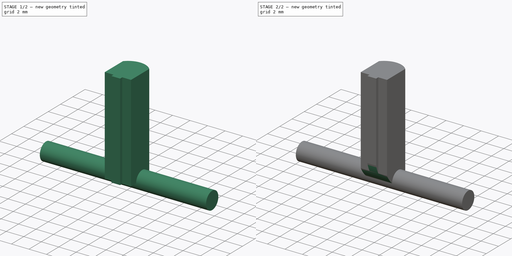
[diagram: build sequence overview — one tinted view per stage of 2, left to right]
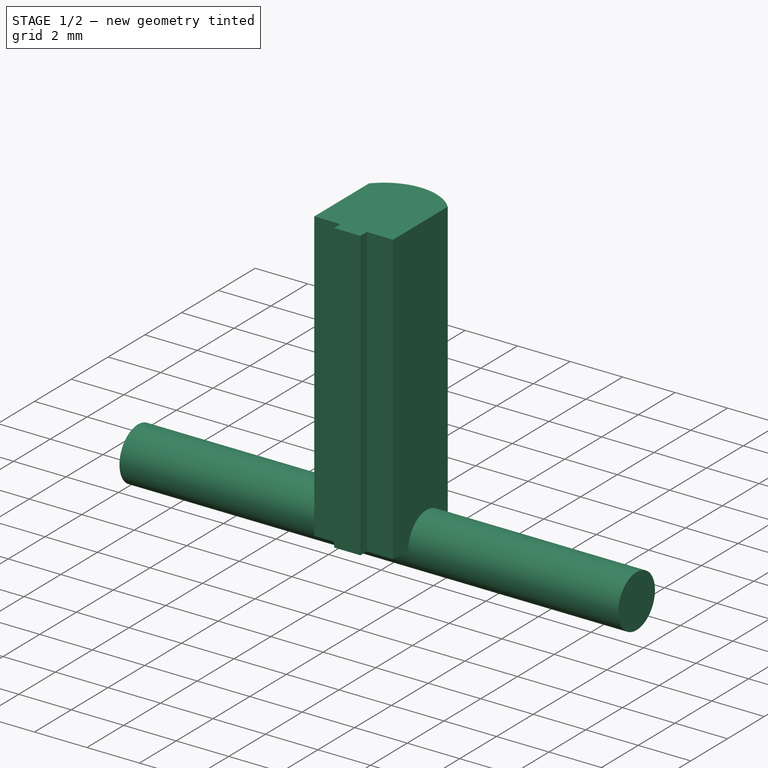
[diagram: stage 1 of 2 — iso view after this stage's code; geometry added in this stage tinted green]
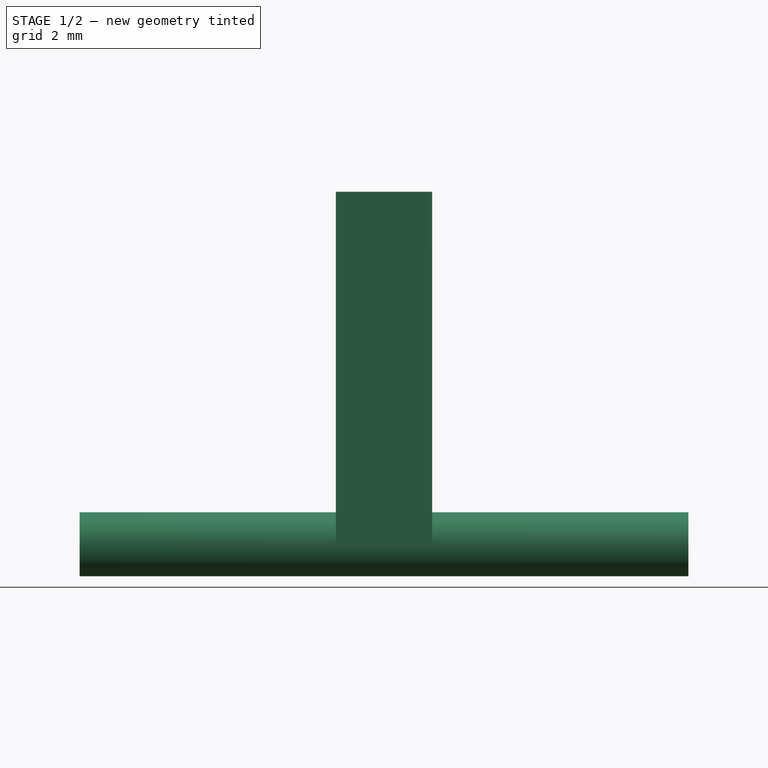
[diagram: stage 1 of 2 — front view after this stage's code; geometry added in this stage tinted green]
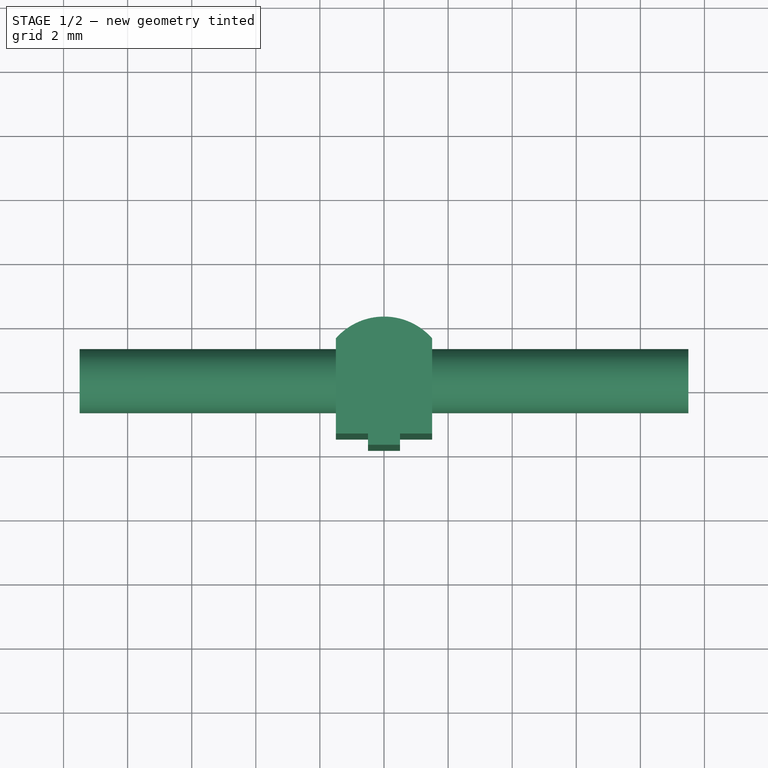
[diagram: stage 1 of 2 — top view after this stage's code; geometry added in this stage tinted green]
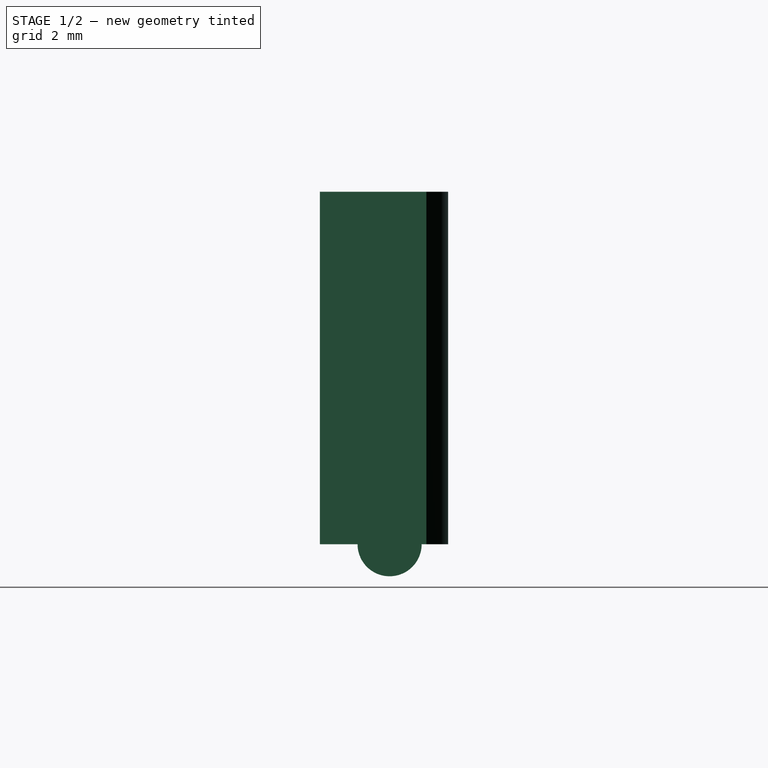
[diagram: stage 1 of 2 — right view after this stage's code; geometry added in this stage tinted green]
FCSTD DOCUMENT  (FreeCAD 0.20R)
Label: Eje Joystick
License: All rights reserved
LicenseURL: http://en.wikipedia.org/wiki/All_rights_reserved
objects: Sketcher::SketchObject×3, PartDesign::Pad×2, PartDesign::Pocket×1, PartDesign::Body×1
note: 10 computed .brp shape members not serialized (recipe doc carries the construction recipe); baked Part::Feature solids carry a one-line shape summary decoded from their .brp

FEATURE [Sketcher::SketchObject] Sketch
  FullyConstrained = true
  MapMode = 5
  Support = -> [XY_Plane]
  sketch-geometry (14):
    g0: LineSegment StartX=-1.5 StartY=1.48644 StartZ=0 EndX=-1.5 EndY=-1.48644 EndZ=0
    g1: LineSegment StartX=-1.5 StartY=-1.48644 StartZ=0 EndX=1.5 EndY=-1.48644 EndZ=0
    g2: LineSegment StartX=1.5 StartY=-1.48644 StartZ=0 EndX=1.5 EndY=1.48644 EndZ=0
    g3: ArcOfCircle CenterX=1e-16 CenterY=0.163562 CenterZ=0 NormalX=0 NormalY=0 NormalZ=1 AngleXU=0 Radius=2 StartAngle=0.722734 EndAngle=2.41886
    g4: LineSegment StartX=-1.5 StartY=1.48644 StartZ=0 EndX=1.5 EndY=-1.48644 EndZ=0
    g5: LineSegment StartX=1.5 StartY=1.48644 StartZ=0 EndX=-1.5 EndY=-1.48644 EndZ=0
    g6: LineSegment StartX=-1.5 StartY=-1.48644 StartZ=0 EndX=-0.5 EndY=-1.48644 EndZ=0
    g7: LineSegment StartX=-0.5 StartY=-1.48644 StartZ=0 EndX=-0.5 EndY=-1.83644 EndZ=0
    g8: LineSegment StartX=-0.5 StartY=-1.83644 StartZ=0 EndX=0.5 EndY=-1.83644 EndZ=0
    g9: LineSegment StartX=0.5 StartY=-1.83644 StartZ=0 EndX=0.5 EndY=-1.48644 EndZ=0
    g10: LineSegment StartX=0.5 StartY=-1.48644 StartZ=0 EndX=1.5 EndY=-1.48644 EndZ=0
    g11: GeomPoint X=1e-16 Y=2.16356 Z=0
    g12: LineSegment StartX=0 StartY=0 StartZ=0 EndX=0 EndY=-1.83644 EndZ=0
    g13: LineSegment StartX=0 StartY=0 StartZ=0 EndX=1e-16 EndY=2.16356 EndZ=0
  constraints (38):
    c: Coincident(g0,g1)
    c: Horizontal(g1)
    c: Coincident(g4,g0)
    c: Coincident(g4,g1)
    c: Coincident(g5,g2)
    c: Coincident(g5,g0)
    c: PointOnObject(g-1,g4)
    c: PointOnObject(g-1,g5)
    c: Coincident(g0,g6)
    c: Horizontal(g6)
    c: Coincident(g6,g7)
    c: Vertical(g7)
    c: Coincident(g7,g8)
    c: Horizontal(g8)
    c: Coincident(g8,g9)
    c: Vertical(g9)
    c: Coincident(g9,g10)
    c: Coincident(g10,g2)
    c: Horizontal(g10)
    c: Equal(g6,g10)
    c: DistanceX(g7,g8) = 1
    c: DistanceY(g8,g9) = 0.35
    c: Coincident(g3,g2)
    c: Vertical(g2)
    c: Coincident(g2,g1)
    c: DistanceX(g0,g2) = 3
    c: PointOnObject(g11,g3)
    c: Vertical(g3,g11)
    c: DistanceY(g8,g11) = 4
    c: Vertical(g0)
    c: Coincident(g3,g0)
    c: Horizontal(g2,g0)
    c: Coincident(g12,g-1)
    c: PointOnObject(g12,g8)
    c: Vertical(g12)
    c: Coincident(g13,g12)
    c: Coincident(g13,g11)
    c: Radius(g3) = 2
FEATURE [PartDesign::Pad] Pad
  Direction = (0,0,1)
  Length = 11
  Length2 = 10
  Profile = -> Sketch
  ReferenceAxis = -> Sketch [N_Axis]
  Type = 0
FEATURE [Sketcher::SketchObject] Sketch001
  ExternalGeometry = -> [Pad]
  FullyConstrained = true
  MapMode = 5
  Placement = pos=(0,0,0) rot=(0.57735,0.57735,0.57735;2.0944rad)
  Support = -> [YZ_Plane]
  sketch-geometry (3):
    g0: LineSegment StartX=-1.48644 StartY=-8e-16 StartZ=0 EndX=0.338562 EndY=-8e-16 EndZ=0
    g1: LineSegment StartX=0.338562 StartY=-8e-16 StartZ=0 EndX=2.16356 EndY=6e-16 EndZ=0
    g2: Circle CenterX=0.338562 CenterY=-8e-16 CenterZ=0 NormalX=0 NormalY=0 NormalZ=1 AngleXU=0 Radius=1
  constraints (7):
    c: Coincident(g0,g-3)
    c: Horizontal(g0)
    c: Coincident(g1,g0)
    c: Coincident(g1,g-4)
    c: Equal(g0,g1)
    c: Coincident(g2,g0)
    c: Diameter(g2) = 2
FEATURE [PartDesign::Pad] Pad001
  BaseFeature = -> Pad
  Direction = (1,-2e-16,3e-16)
  Length = 19
  Length2 = 10
  Midplane = true
  Profile = -> Sketch001
  ReferenceAxis = -> Sketch001 [N_Axis]
  Type = 0
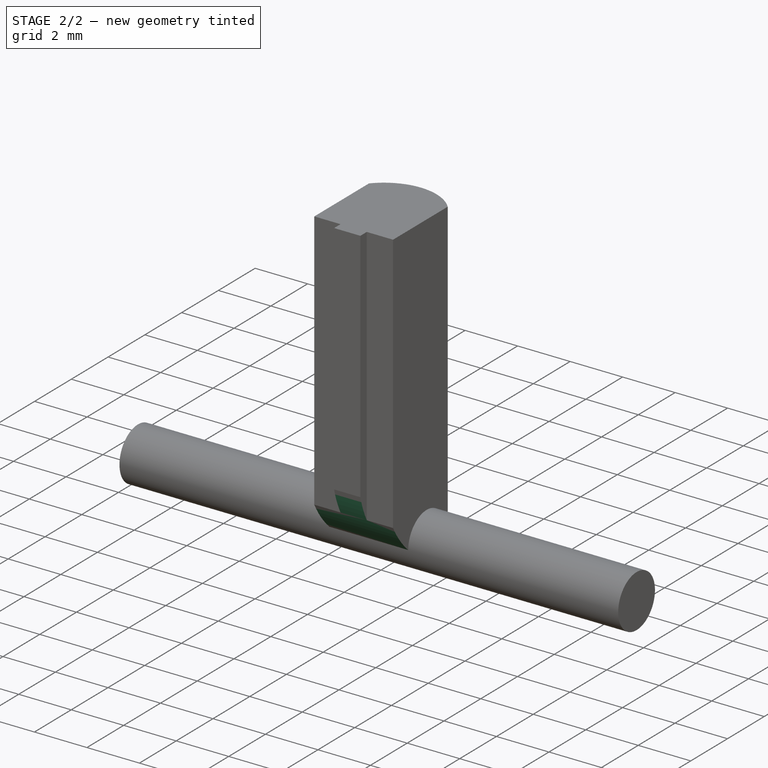
[diagram: stage 2 of 2 — iso view after this stage's code; geometry added in this stage tinted green]
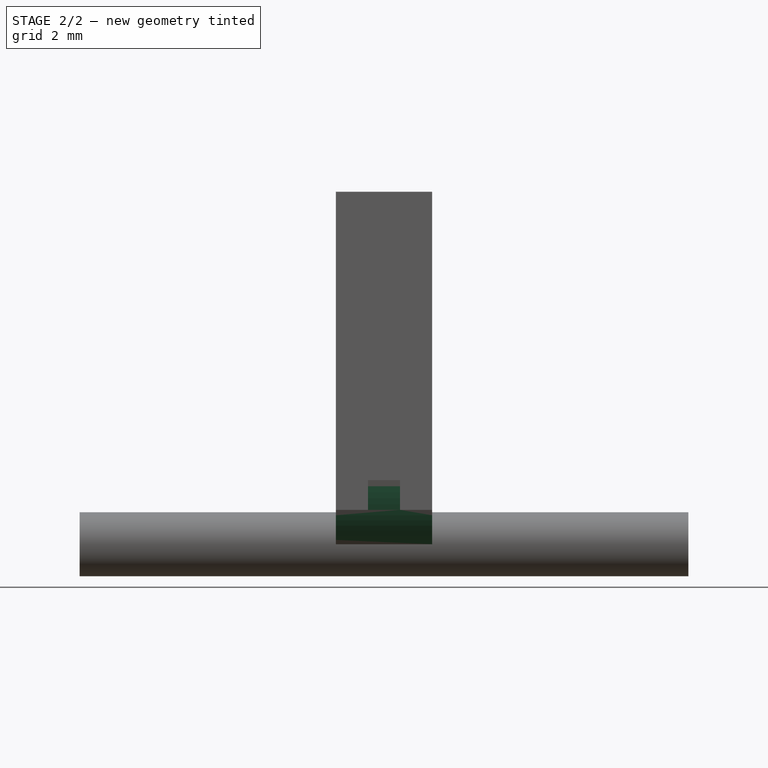
[diagram: stage 2 of 2 — front view after this stage's code; geometry added in this stage tinted green]
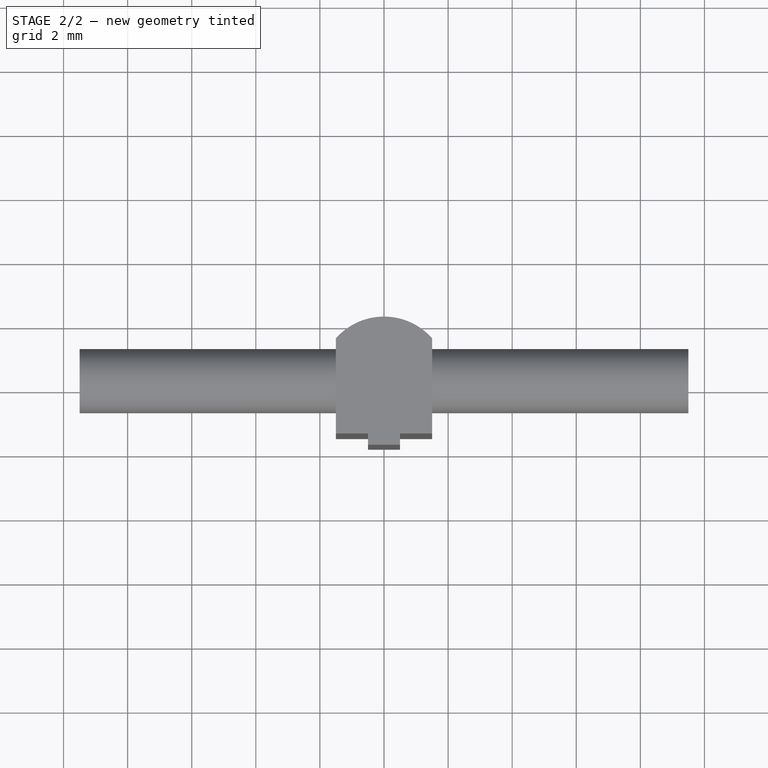
[diagram: stage 2 of 2 — top view after this stage's code; geometry added in this stage tinted green]
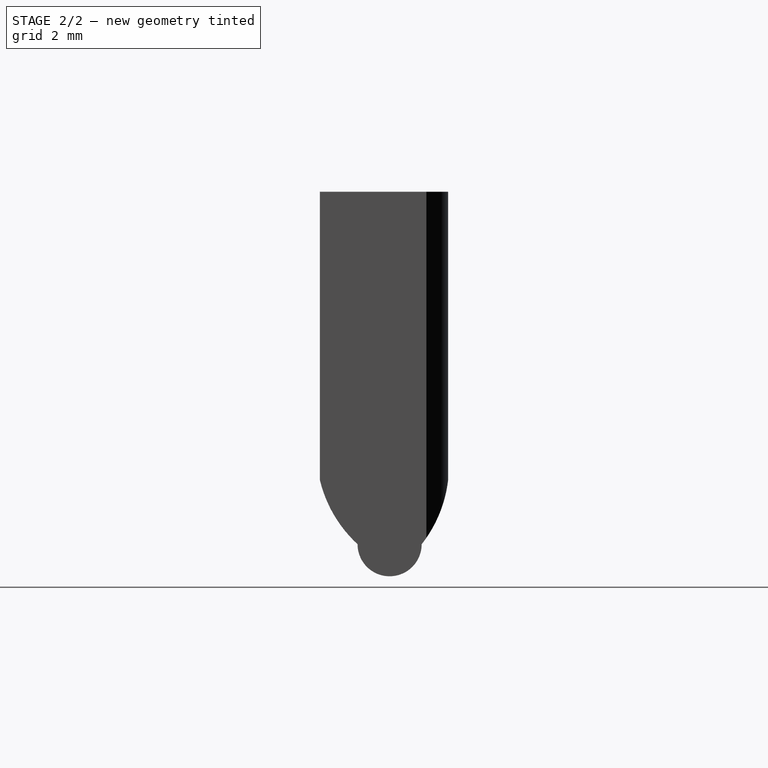
[diagram: stage 2 of 2 — right view after this stage's code; geometry added in this stage tinted green]
FEATURE [Sketcher::SketchObject] Sketch002
  ExternalGeometry = -> [Pad001]
  FullyConstrained = true
  MapMode = 5
  Placement = pos=(0,0,0) rot=(0.57735,0.57735,0.57735;2.0944rad)
  Support = -> [YZ_Plane]
  sketch-geometry (9):
    g0: ArcOfCircle CenterX=2.05175 CenterY=2.93915 CenterZ=0 NormalX=0 NormalY=0 NormalZ=1 AngleXU=0 Radius=4 StartAngle=3.37859 EndAngle=3.96695
    g1: ArcOfCircle CenterX=-1.80891 CenterY=2.46849 CenterZ=0 NormalX=0 NormalY=0 NormalZ=1 AngleXU=0 Radius=4 StartAngle=5.61811 EndAngle=6.16579
    g2: LineSegment StartX=-1.83644 StartY=2 StartZ=0 EndX=-3.01144 EndY=2 EndZ=0
    g3: LineSegment StartX=-3.01144 StartY=2 StartZ=0 EndX=-3.01144 EndY=-7e-16 EndZ=0
    g4: LineSegment StartX=-3.01144 StartY=-6e-16 StartZ=0 EndX=-0.661438 EndY=-6e-16 EndZ=0
    g5: LineSegment StartX=2.16356 StartY=2 StartZ=0 EndX=3.33856 EndY=2 EndZ=0
    g6: LineSegment StartX=3.33856 StartY=2 StartZ=0 EndX=3.33856 EndY=-7e-16 EndZ=0
    g7: LineSegment StartX=3.33856 StartY=-6e-16 StartZ=0 EndX=1.33856 EndY=-6e-16 EndZ=0
    g8: LineSegment StartX=-0.661438 StartY=-6e-16 StartZ=0 EndX=1.33856 EndY=-6e-16 EndZ=0
  constraints (27):
    c: Coincident(g2,g0)
    c: Horizontal(g2)
    c: Coincident(g3,g2)
    c: Vertical(g3)
    c: Coincident(g4,g3)
    c: Horizontal(g4)
    c: Coincident(g5,g1)
    c: Horizontal(g5)
    c: Coincident(g6,g5)
    c: Coincident(g7,g6)
    c: Horizontal(g7)
    c: Vertical(g6)
    c: Horizontal(g1,g0)
    c: Equal(g1,g0)
    c: Equal(g2,g5)
    c: DistanceY(g3,g2) = 2
    c: Vertical(g0,g-4)
    c: Coincident(g4,g0)
    c: Coincident(g7,g1)
    c: Coincident(g-5,g0)
    c: PointOnObject(g1,g-7)
    c: Radius(g1) = 4
    c: Coincident(g8,g0)
    c: Coincident(g8,g1)
    c: Equal(g8,g7)
    c: Horizontal(g8)
    c: Vertical(g-6,g1)
FEATURE [PartDesign::Pocket] Pocket
  BaseFeature = -> Pad001
  Direction = (-1,2e-16,-3e-16)
  Length = 5
  Length2 = 5
  Midplane = true
  Profile = -> Sketch002
  ReferenceAxis = -> Sketch002 [N_Axis]
  Type = 0
FEATURE [PartDesign::Body] Body
  Group = -> [Sketch,Pad,Sketch001,Pad001,Sketch002,Pocket]
  Origin = -> Origin
  Tip = -> Pocket
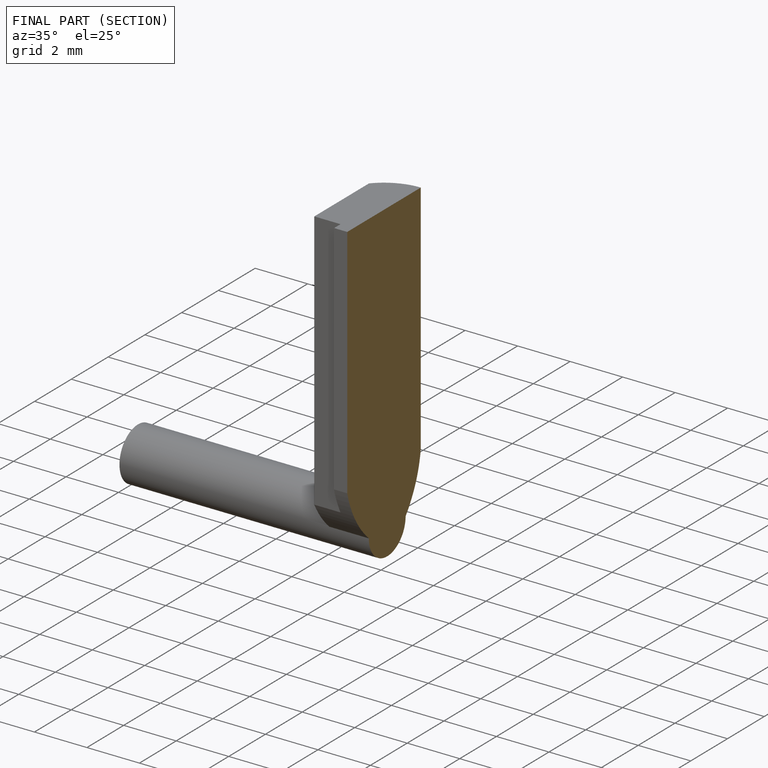
[diagram: finished part — half-section view (interior)]
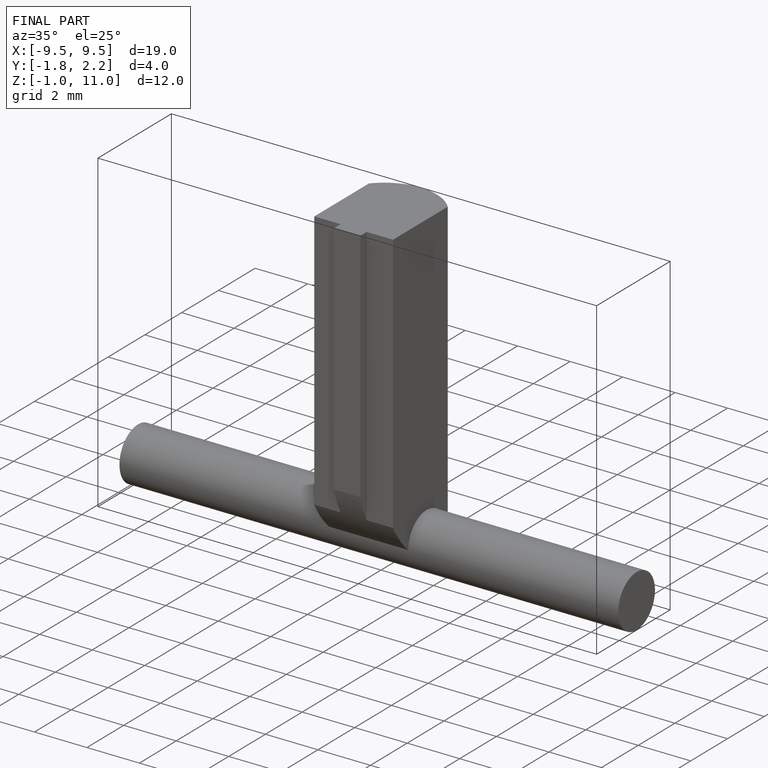
[diagram: finished part — iso view with bounding-box wireframe]
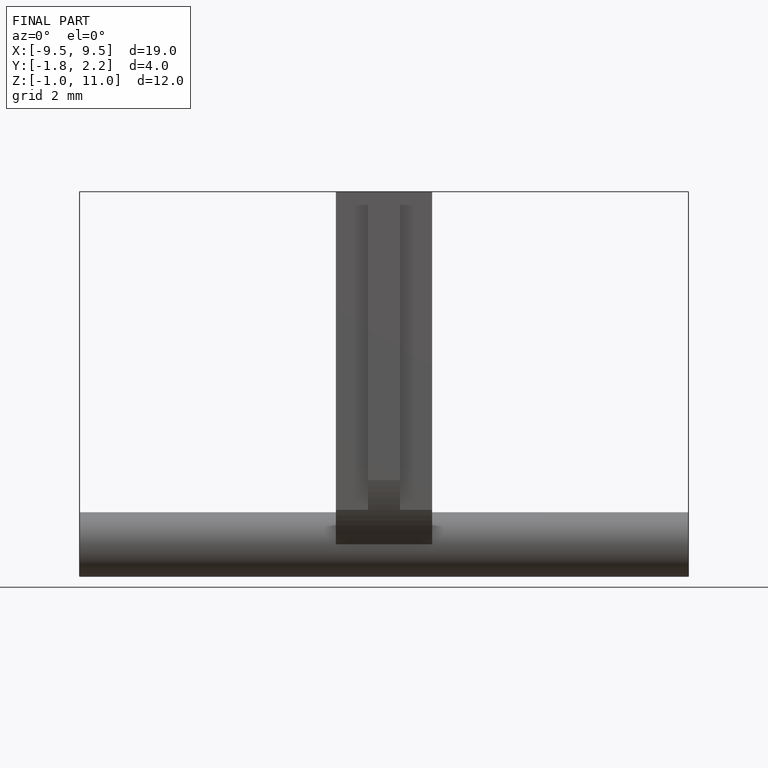
[diagram: finished part — front view with bounding-box wireframe]
